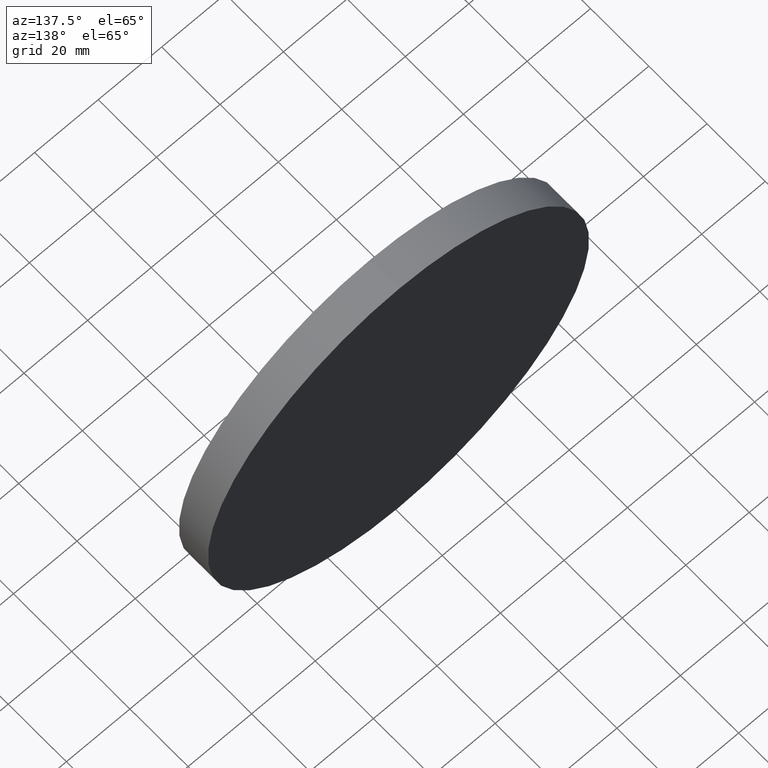
[diagram: clean part render]
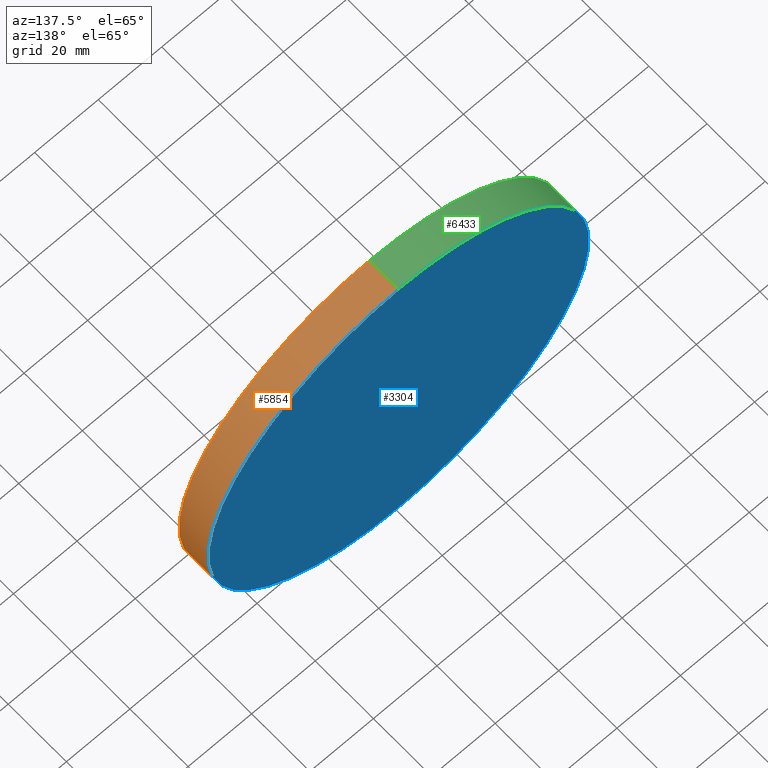
[diagram: same view with three faces highlighted in distinct colors, each labeled with its STEP entity id]
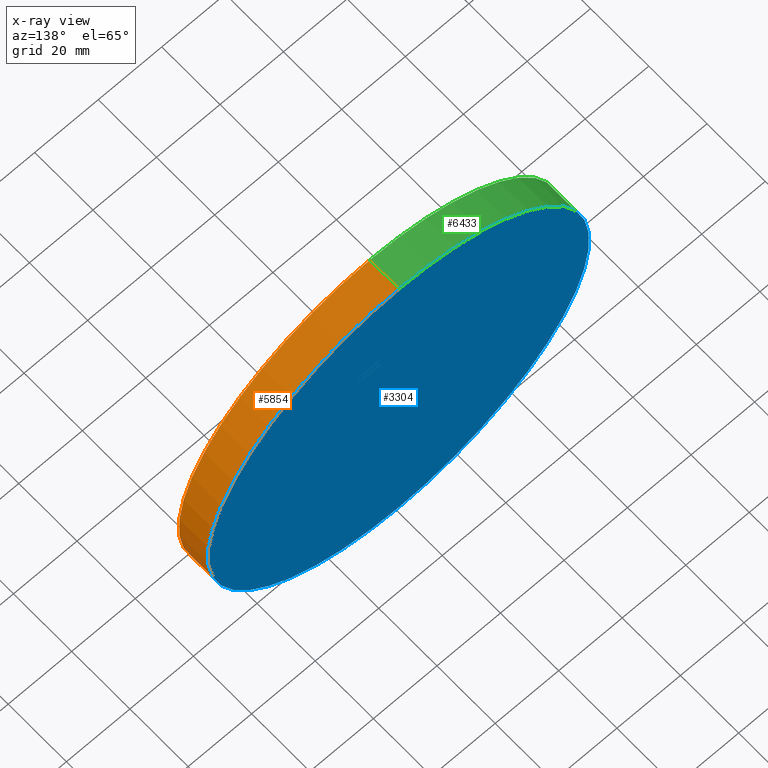
[diagram: x-ray of the same camera — body ghosted, the three highlighted faces saturated]
A machine part, auxiliary view with three faces highlighted in distinct colors.
The next image is the same camera in x-ray (body ghosted, the three faces saturated) — at least one of them is partly hidden behind the body in this view.
Their STEP definitions:

[orange] entity #5854 — the highlighted cylindrical surface (partial cylindrical patch) has radius 60 mm, axis along (-0, -1, -0).
#103 = VERTEX_POINT ( 'NONE', #10615 ) ;
#500 = CARTESIAN_POINT ( 'NONE',  ( 7.347880794884118356E-15, -5.000000000000000000, 60.00000000000000000 ) ) ;
#852 = CARTESIAN_POINT ( 'NONE',  ( 0.000000000000000000, 5.000000000000000000, -60.00000000000000000 ) ) ;
#886 = VERTEX_POINT ( 'NONE', #8275 ) ;
#1109 = CARTESIAN_POINT ( 'NONE',  ( 0.000000000000000000, -5.000000000000000000, 0.000000000000000000 ) ) ;
#1942 = EDGE_LOOP ( 'NONE', ( #9658, #9378, #13093, #4928 ) ) ;
#2052 = CARTESIAN_POINT ( 'NONE',  ( 0.000000000000000000, 5.000000000000000000, 0.000000000000000000 ) ) ;
#2105 = DIRECTION ( 'NONE',  ( 0.000000000000000000, 0.000000000000000000, -1.000000000000000000 ) ) ;
#2358 = FACE_OUTER_BOUND ( 'NONE', #1942, .T. ) ;
#3026 = CYLINDRICAL_SURFACE ( 'NONE', #3103, 60.00000000000000000 ) ;
#3103 = AXIS2_PLACEMENT_3D ( 'NONE', #2052, #5357, #2105 ) ;
#3570 = DIRECTION ( 'NONE',  ( 0.000000000000000000, 1.000000000000000000, 0.000000000000000000 ) ) ;
#3582 = LINE ( 'NONE', #852, #12702 ) ;
#4089 = CIRCLE ( 'NONE', #7860, 60.00000000000000000 ) ;
#4928 = ORIENTED_EDGE ( 'NONE', *, *, #11741, .F. ) ;
#4937 = EDGE_CURVE ( 'NONE', #12124, #103, #8630, .T. ) ;
#5357 = DIRECTION ( 'NONE',  ( -0.000000000000000000, -1.000000000000000000, -0.000000000000000000 ) ) ;
#5746 = AXIS2_PLACEMENT_3D ( 'NONE', #1109, #8711, #14010 ) ;
#5794 = CARTESIAN_POINT ( 'NONE',  ( 0.000000000000000000, 5.000000000000000000, 0.000000000000000000 ) ) ;
#5854 = ADVANCED_FACE ( 'NONE', ( #2358 ), #3026, .T. ) ;
#6408 = EDGE_CURVE ( 'NONE', #886, #12124, #8550, .T. ) ;
#7201 = CARTESIAN_POINT ( 'NONE',  ( 0.000000000000000000, 5.000000000000000000, -60.00000000000000000 ) ) ;
#7860 = AXIS2_PLACEMENT_3D ( 'NONE', #5794, #3570, #11130 ) ;
#8275 = CARTESIAN_POINT ( 'NONE',  ( 7.347880794884118356E-15, 5.000000000000000000, 60.00000000000000000 ) ) ;
#8550 = LINE ( 'NONE', #8607, #12288 ) ;
#8607 = CARTESIAN_POINT ( 'NONE',  ( 7.347880794884118356E-15, 5.000000000000000000, 60.00000000000000000 ) ) ;
#8630 = CIRCLE ( 'NONE', #5746, 60.00000000000000000 ) ;
#8711 = DIRECTION ( 'NONE',  ( 0.000000000000000000, 1.000000000000000000, 0.000000000000000000 ) ) ;
#9378 = ORIENTED_EDGE ( 'NONE', *, *, #6408, .T. ) ;
#9658 = ORIENTED_EDGE ( 'NONE', *, *, #12007, .F. ) ;
#10615 = CARTESIAN_POINT ( 'NONE',  ( 0.000000000000000000, -5.000000000000000000, -60.00000000000000000 ) ) ;
#11130 = DIRECTION ( 'NONE',  ( 0.000000000000000000, 0.000000000000000000, 1.000000000000000000 ) ) ;
#11741 = EDGE_CURVE ( 'NONE', #13603, #103, #3582, .T. ) ;
#11982 = DIRECTION ( 'NONE',  ( -0.000000000000000000, -1.000000000000000000, -0.000000000000000000 ) ) ;
#12007 = EDGE_CURVE ( 'NONE', #886, #13603, #4089, .T. ) ;
#12124 = VERTEX_POINT ( 'NONE', #500 ) ;
#12288 = VECTOR ( 'NONE', #11982, 1000.000000000000000 ) ;
#12702 = VECTOR ( 'NONE', #12760, 1000.000000000000000 ) ;
#12760 = DIRECTION ( 'NONE',  ( -0.000000000000000000, -1.000000000000000000, -0.000000000000000000 ) ) ;
#13093 = ORIENTED_EDGE ( 'NONE', *, *, #4937, .T. ) ;
#13603 = VERTEX_POINT ( 'NONE', #7201 ) ;
#14010 = DIRECTION ( 'NONE',  ( 0.000000000000000000, 0.000000000000000000, 1.000000000000000000 ) ) ;

[blue] entity #3304 — the highlighted planar face has unit normal (0, 1, 0).
#510 = CIRCLE ( 'NONE', #676, 60.00000000000000000 ) ;
#676 = AXIS2_PLACEMENT_3D ( 'NONE', #11898, #8616, #11845 ) ;
#886 = VERTEX_POINT ( 'NONE', #8275 ) ;
#2648 = AXIS2_PLACEMENT_3D ( 'NONE', #2931, #2975, #8464 ) ;
#2931 = CARTESIAN_POINT ( 'NONE',  ( 0.000000000000000000, 5.000000000000000000, 0.000000000000000000 ) ) ;
#2975 = DIRECTION ( 'NONE',  ( 0.000000000000000000, 1.000000000000000000, 0.000000000000000000 ) ) ;
#3304 = ADVANCED_FACE ( 'NONE', ( #8985 ), #4131, .T. ) ;
#3570 = DIRECTION ( 'NONE',  ( 0.000000000000000000, 1.000000000000000000, 0.000000000000000000 ) ) ;
#4089 = CIRCLE ( 'NONE', #7860, 60.00000000000000000 ) ;
#4131 = PLANE ( 'NONE',  #2648 ) ;
#5153 = ORIENTED_EDGE ( 'NONE', *, *, #5816, .T. ) ;
#5794 = CARTESIAN_POINT ( 'NONE',  ( 0.000000000000000000, 5.000000000000000000, 0.000000000000000000 ) ) ;
#5816 = EDGE_CURVE ( 'NONE', #13603, #886, #510, .T. ) ;
#7201 = CARTESIAN_POINT ( 'NONE',  ( 0.000000000000000000, 5.000000000000000000, -60.00000000000000000 ) ) ;
#7860 = AXIS2_PLACEMENT_3D ( 'NONE', #5794, #3570, #11130 ) ;
#8275 = CARTESIAN_POINT ( 'NONE',  ( 7.347880794884118356E-15, 5.000000000000000000, 60.00000000000000000 ) ) ;
#8335 = EDGE_LOOP ( 'NONE', ( #5153, #11451 ) ) ;
#8464 = DIRECTION ( 'NONE',  ( 0.000000000000000000, -0.000000000000000000, 1.000000000000000000 ) ) ;
#8616 = DIRECTION ( 'NONE',  ( 0.000000000000000000, 1.000000000000000000, 0.000000000000000000 ) ) ;
#8985 = FACE_OUTER_BOUND ( 'NONE', #8335, .T. ) ;
#11130 = DIRECTION ( 'NONE',  ( 0.000000000000000000, 0.000000000000000000, 1.000000000000000000 ) ) ;
#11451 = ORIENTED_EDGE ( 'NONE', *, *, #12007, .T. ) ;
#11845 = DIRECTION ( 'NONE',  ( 0.000000000000000000, 0.000000000000000000, 1.000000000000000000 ) ) ;
#11898 = CARTESIAN_POINT ( 'NONE',  ( 0.000000000000000000, 5.000000000000000000, 0.000000000000000000 ) ) ;
#12007 = EDGE_CURVE ( 'NONE', #886, #13603, #4089, .T. ) ;
#13603 = VERTEX_POINT ( 'NONE', #7201 ) ;

[green] entity #6433 — the highlighted cylindrical surface (partial cylindrical patch) has radius 60 mm, axis along (-0, -1, -0).
#103 = VERTEX_POINT ( 'NONE', #10615 ) ;
#500 = CARTESIAN_POINT ( 'NONE',  ( 7.347880794884118356E-15, -5.000000000000000000, 60.00000000000000000 ) ) ;
#510 = CIRCLE ( 'NONE', #676, 60.00000000000000000 ) ;
#676 = AXIS2_PLACEMENT_3D ( 'NONE', #11898, #8616, #11845 ) ;
#852 = CARTESIAN_POINT ( 'NONE',  ( 0.000000000000000000, 5.000000000000000000, -60.00000000000000000 ) ) ;
#886 = VERTEX_POINT ( 'NONE', #8275 ) ;
#1239 = CIRCLE ( 'NONE', #7169, 60.00000000000000000 ) ;
#1516 = EDGE_CURVE ( 'NONE', #103, #12124, #1239, .T. ) ;
#1746 = DIRECTION ( 'NONE',  ( 0.000000000000000000, 0.000000000000000000, 1.000000000000000000 ) ) ;
#3421 = DIRECTION ( 'NONE',  ( 0.000000000000000000, 0.000000000000000000, -1.000000000000000000 ) ) ;
#3582 = LINE ( 'NONE', #852, #12702 ) ;
#4825 = ORIENTED_EDGE ( 'NONE', *, *, #5816, .F. ) ;
#5809 = ORIENTED_EDGE ( 'NONE', *, *, #6408, .F. ) ;
#5816 = EDGE_CURVE ( 'NONE', #13603, #886, #510, .T. ) ;
#6087 = CARTESIAN_POINT ( 'NONE',  ( 0.000000000000000000, -5.000000000000000000, 0.000000000000000000 ) ) ;
#6408 = EDGE_CURVE ( 'NONE', #886, #12124, #8550, .T. ) ;
#6433 = ADVANCED_FACE ( 'NONE', ( #13623 ), #7191, .T. ) ;
#7169 = AXIS2_PLACEMENT_3D ( 'NONE', #6087, #8303, #1746 ) ;
#7191 = CYLINDRICAL_SURFACE ( 'NONE', #9474, 60.00000000000000000 ) ;
#7201 = CARTESIAN_POINT ( 'NONE',  ( 0.000000000000000000, 5.000000000000000000, -60.00000000000000000 ) ) ;
#8275 = CARTESIAN_POINT ( 'NONE',  ( 7.347880794884118356E-15, 5.000000000000000000, 60.00000000000000000 ) ) ;
#8303 = DIRECTION ( 'NONE',  ( 0.000000000000000000, 1.000000000000000000, 0.000000000000000000 ) ) ;
#8550 = LINE ( 'NONE', #8607, #12288 ) ;
#8607 = CARTESIAN_POINT ( 'NONE',  ( 7.347880794884118356E-15, 5.000000000000000000, 60.00000000000000000 ) ) ;
#8616 = DIRECTION ( 'NONE',  ( 0.000000000000000000, 1.000000000000000000, 0.000000000000000000 ) ) ;
#8937 = DIRECTION ( 'NONE',  ( -0.000000000000000000, -1.000000000000000000, -0.000000000000000000 ) ) ;
#9280 = EDGE_LOOP ( 'NONE', ( #5809, #4825, #12329, #9629 ) ) ;
#9474 = AXIS2_PLACEMENT_3D ( 'NONE', #12217, #8937, #3421 ) ;
#9629 = ORIENTED_EDGE ( 'NONE', *, *, #1516, .T. ) ;
#10615 = CARTESIAN_POINT ( 'NONE',  ( 0.000000000000000000, -5.000000000000000000, -60.00000000000000000 ) ) ;
#11741 = EDGE_CURVE ( 'NONE', #13603, #103, #3582, .T. ) ;
#11845 = DIRECTION ( 'NONE',  ( 0.000000000000000000, 0.000000000000000000, 1.000000000000000000 ) ) ;
#11898 = CARTESIAN_POINT ( 'NONE',  ( 0.000000000000000000, 5.000000000000000000, 0.000000000000000000 ) ) ;
#11982 = DIRECTION ( 'NONE',  ( -0.000000000000000000, -1.000000000000000000, -0.000000000000000000 ) ) ;
#12124 = VERTEX_POINT ( 'NONE', #500 ) ;
#12217 = CARTESIAN_POINT ( 'NONE',  ( 0.000000000000000000, 5.000000000000000000, 0.000000000000000000 ) ) ;
#12288 = VECTOR ( 'NONE', #11982, 1000.000000000000000 ) ;
#12329 = ORIENTED_EDGE ( 'NONE', *, *, #11741, .T. ) ;
#12702 = VECTOR ( 'NONE', #12760, 1000.000000000000000 ) ;
#12760 = DIRECTION ( 'NONE',  ( -0.000000000000000000, -1.000000000000000000, -0.000000000000000000 ) ) ;
#13603 = VERTEX_POINT ( 'NONE', #7201 ) ;
#13623 = FACE_OUTER_BOUND ( 'NONE', #9280, .T. ) ;